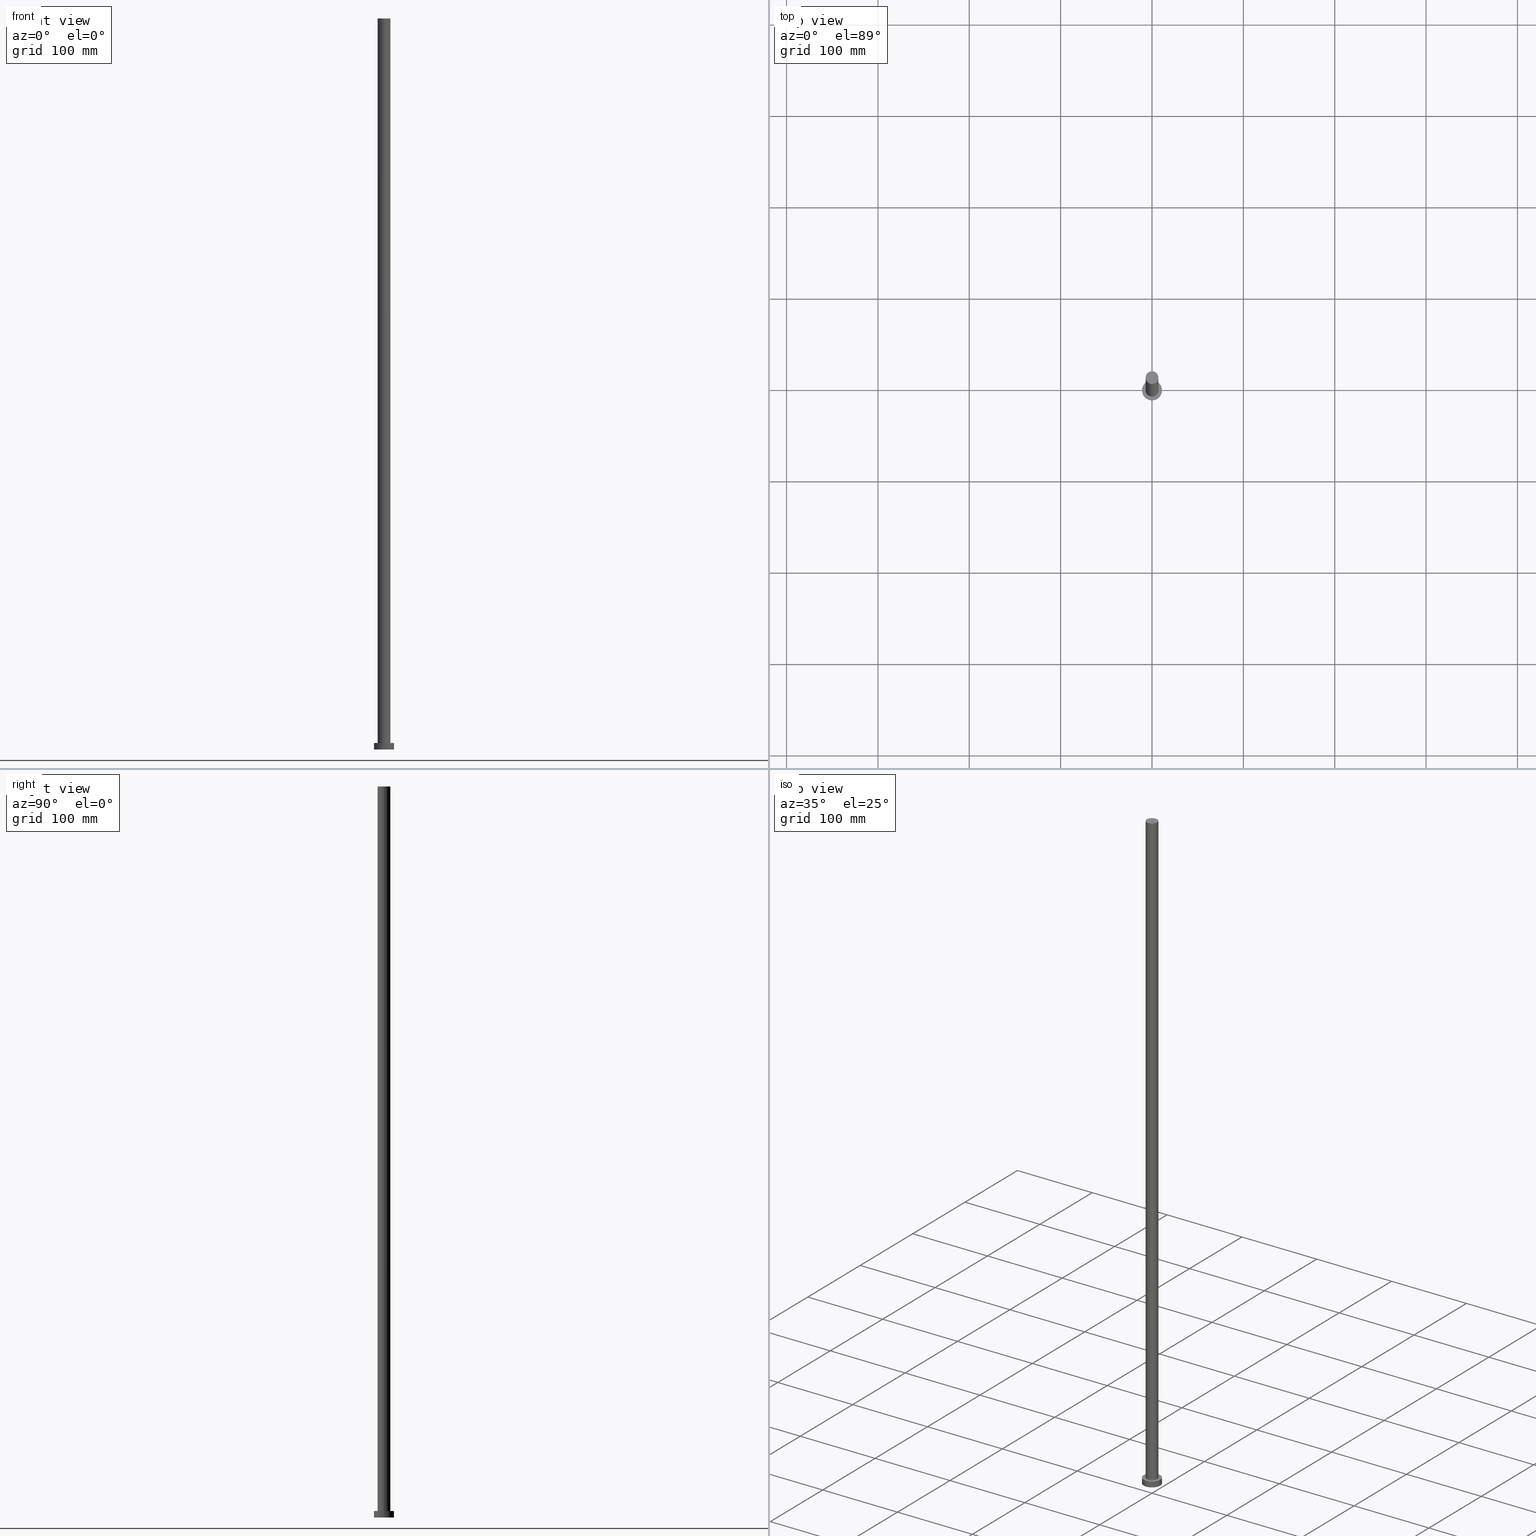
[diagram: canonical four-view strip — front | top / right | iso, engineering-drawing reading convention]
A machine part, canonical four-view strip (front | top / right | iso — engineering-drawing reading convention). The complete STEP part file that produces these views, byte-faithful:
ISO-10303-21;
HEADER;
FILE_DESCRIPTION (( 'STEP AP203' ),
    '1' );
FILE_NAME ('96db.STEP',
    '2023-02-13T09:22:02',
    ( '' ),
    ( '' ),
    'SwSTEP 2.0',
    'SolidWorks 2019',
    '' );
FILE_SCHEMA (( 'CONFIG_CONTROL_DESIGN' ));
ENDSEC;

DATA;
#1 = ORIENTED_EDGE ( 'NONE', *, *, #146, .T. ) ;
#2 = DATE_AND_TIME ( #14, #159 ) ;
#3 = EDGE_CURVE ( 'NONE', #200, #70, #125, .T. ) ;
#4 = AXIS2_PLACEMENT_3D ( 'NONE', #13, #38, #109 ) ;
#5 = APPLICATION_CONTEXT ( 'configuration controlled 3d designs of mechanical parts and assemblies' ) ;
#6 = PERSON_AND_ORGANIZATION_ROLE ( 'classification_officer' ) ;
#7 = DIRECTION ( 'NONE',  ( -1.000000000000000000, 0.000000000000000000, 0.000000000000000000 ) ) ;
#8 = ORIENTED_EDGE ( 'NONE', *, *, #187, .T. ) ;
#9 = APPROVAL_ROLE ( '' ) ;
#10 = DIRECTION ( 'NONE',  ( 0.000000000000000000, 0.000000000000000000, 1.000000000000000000 ) ) ;
#11 = AXIS2_PLACEMENT_3D ( 'NONE', #145, #50, #166 ) ;
#12 = LOCAL_TIME ( 10, 22, 2.000000000000000000, #57 ) ;
#13 = CARTESIAN_POINT ( 'NONE',  ( 0.000000000000000000, 0.000000000000000000, 0.000000000000000000 ) ) ;
#14 = CALENDAR_DATE ( 2023, 13, 2 ) ;
#15 = LOCAL_TIME ( 10, 22, 2.000000000000000000, #241 ) ;
#16 = PERSON_AND_ORGANIZATION ( #87, #202 ) ;
#17 = ORIENTED_EDGE ( 'NONE', *, *, #138, .T. ) ;
#18 = CARTESIAN_POINT ( 'NONE',  ( 0.000000000000000000, 0.000000000000000000, 7.000000000000000000 ) ) ;
#19 = CC_DESIGN_DATE_AND_TIME_ASSIGNMENT ( #36, #192, ( #216 ) ) ;
#20 = CARTESIAN_POINT ( 'NONE',  ( 0.000000000000000000, 0.000000000000000000, 7.000000000000000000 ) ) ;
#21 = FACE_OUTER_BOUND ( 'NONE', #37, .T. ) ;
#22 = CC_DESIGN_PERSON_AND_ORGANIZATION_ASSIGNMENT ( #172, #169, ( #212 ) ) ;
#23 = ORIENTED_EDGE ( 'NONE', *, *, #152, .T. ) ;
#24 = FACE_OUTER_BOUND ( 'NONE', #65, .T. ) ;
#25 = ORIENTED_EDGE ( 'NONE', *, *, #97, .T. ) ;
#26 = DIRECTION ( 'NONE',  ( 1.000000000000000000, 0.000000000000000000, 0.000000000000000000 ) ) ;
#27 = AXIS2_PLACEMENT_3D ( 'NONE', #29, #231, #163 ) ;
#28 = APPROVAL ( #168, 'NEUR�EN�' ) ;
#29 = CARTESIAN_POINT ( 'NONE',  ( 0.000000000000000000, 0.000000000000000000, 7.000000000000000000 ) ) ;
#30 = CARTESIAN_POINT ( 'NONE',  ( 11.00000000000000000, 1.347111479062088405E-15, 7.000000000000000000 ) ) ;
#31 = CARTESIAN_POINT ( 'NONE',  ( -11.00000000000000000, 0.000000000000000000, 7.000000000000000000 ) ) ;
#32 = DIRECTION ( 'NONE',  ( 0.000000000000000000, 0.000000000000000000, 1.000000000000000000 ) ) ;
#33 = FACE_OUTER_BOUND ( 'NONE', #44, .T. ) ;
#34 = ORIENTED_EDGE ( 'NONE', *, *, #108, .T. ) ;
#35 = CARTESIAN_POINT ( 'NONE',  ( 11.00000000000000000, 1.347111479062088405E-15, 7.000000000000000000 ) ) ;
#36 = DATE_AND_TIME ( #135, #15 ) ;
#37 = EDGE_LOOP ( 'NONE', ( #207, #164, #23, #1 ) ) ;
#38 = DIRECTION ( 'NONE',  ( 0.000000000000000000, 0.000000000000000000, 1.000000000000000000 ) ) ;
#39 = VECTOR ( 'NONE', #119, 1000.000000000000000 ) ;
#40 = VERTEX_POINT ( 'NONE', #127 ) ;
#41 = ORIENTED_EDGE ( 'NONE', *, *, #187, .F. ) ;
#42 = PERSON_AND_ORGANIZATION ( #87, #202 ) ;
#43 = AXIS2_PLACEMENT_3D ( 'NONE', #188, #82, #84 ) ;
#44 = EDGE_LOOP ( 'NONE', ( #75, #195, #25, #95 ) ) ;
#45 = ADVANCED_BREP_SHAPE_REPRESENTATION ( '96db', ( #155, #4 ), #219 ) ;
#46 = DESIGN_CONTEXT ( 'detailed design', #225, 'design' ) ;
#47 = PLANE ( 'NONE',  #158 ) ;
#48 = DIRECTION ( 'NONE',  ( -1.000000000000000000, 0.000000000000000000, 0.000000000000000000 ) ) ;
#49 = CIRCLE ( 'NONE', #105, 7.000000000000000888 ) ;
#50 = DIRECTION ( 'NONE',  ( -0.000000000000000000, -0.000000000000000000, -1.000000000000000000 ) ) ;
#51 = CALENDAR_DATE ( 2023, 13, 2 ) ;
#52 = PERSON_AND_ORGANIZATION ( #87, #202 ) ;
#53 = PERSON_AND_ORGANIZATION ( #87, #202 ) ;
#54 = ORIENTED_EDGE ( 'NONE', *, *, #146, .F. ) ;
#55 = CC_DESIGN_APPROVAL ( #28, ( #153 ) ) ;
#56 = MECHANICAL_CONTEXT ( 'NONE', #5, 'mechanical' ) ;
#57 = COORDINATED_UNIVERSAL_TIME_OFFSET ( 1, 0, .AHEAD. ) ;
#58 = CLOSED_SHELL ( 'NONE', ( #129, #175, #154, #180, #245, #104, #147 ) ) ;
#59 = CC_DESIGN_APPROVAL ( #64, ( #212 ) ) ;
#60 = EDGE_CURVE ( 'NONE', #40, #70, #201, .T. ) ;
#61 = AXIS2_PLACEMENT_3D ( 'NONE', #18, #220, #112 ) ;
#62 = DATE_AND_TIME ( #78, #243 ) ;
#63 = DIRECTION ( 'NONE',  ( 1.000000000000000000, 0.000000000000000000, 0.000000000000000000 ) ) ;
#64 = APPROVAL ( #130, 'NEUR�EN�' ) ;
#65 = EDGE_LOOP ( 'NONE', ( #182, #232, #204, #149 ) ) ;
#66 = DIRECTION ( 'NONE',  ( -0.000000000000000000, -0.000000000000000000, -1.000000000000000000 ) ) ;
#67 = FACE_OUTER_BOUND ( 'NONE', #161, .T. ) ;
#68 = SHAPE_DEFINITION_REPRESENTATION ( #250, #45 ) ;
#69 = CARTESIAN_POINT ( 'NONE',  ( -7.000000000000000888, 0.000000000000000000, 800.0000000000000000 ) ) ;
#70 = VERTEX_POINT ( 'NONE', #72 ) ;
#71 = VECTOR ( 'NONE', #157, 1000.000000000000000 ) ;
#72 = CARTESIAN_POINT ( 'NONE',  ( 11.00000000000000000, 1.347111479062088405E-15, 0.000000000000000000 ) ) ;
#73 = CC_DESIGN_PERSON_AND_ORGANIZATION_ASSIGNMENT ( #42, #6, ( #153 ) ) ;
#74 = PERSON_AND_ORGANIZATION_ROLE ( 'design_supplier' ) ;
#75 = ORIENTED_EDGE ( 'NONE', *, *, #99, .F. ) ;
#76 = CC_DESIGN_PERSON_AND_ORGANIZATION_ASSIGNMENT ( #52, #131, ( #216 ) ) ;
#77 = CARTESIAN_POINT ( 'NONE',  ( 0.000000000000000000, 0.000000000000000000, 800.0000000000000000 ) ) ;
#78 = CALENDAR_DATE ( 2023, 13, 2 ) ;
#79 = LINE ( 'NONE', #160, #71 ) ;
#80 = LINE ( 'NONE', #226, #39 ) ;
#81 = APPROVAL_PERSON_ORGANIZATION ( #88, #64, #217 ) ;
#82 = DIRECTION ( 'NONE',  ( 0.000000000000000000, 0.000000000000000000, 1.000000000000000000 ) ) ;
#83 = CARTESIAN_POINT ( 'NONE',  ( 0.000000000000000000, 0.000000000000000000, 7.000000000000000000 ) ) ;
#84 = DIRECTION ( 'NONE',  ( 1.000000000000000000, 0.000000000000000000, 0.000000000000000000 ) ) ;
#85 = AXIS2_PLACEMENT_3D ( 'NONE', #211, #32, #223 ) ;
#86 = CARTESIAN_POINT ( 'NONE',  ( 0.000000000000000000, 0.000000000000000000, 0.000000000000000000 ) ) ;
#87 = PERSON ( 'NEUR�EN�', 'NEUR�EN�', 'NEUR�EN�', ('NEUR�EN�'), ('NEUR�EN�'), ('NEUR�EN�') ) ;
#88 = PERSON_AND_ORGANIZATION ( #87, #202 ) ;
#89 = APPROVAL_PERSON_ORGANIZATION ( #208, #28, #9 ) ;
#90 = APPLICATION_PROTOCOL_DEFINITION ( 'international standard', 'config_control_design', 1994, #225 ) ;
#91 = DIRECTION ( 'NONE',  ( -1.000000000000000000, 0.000000000000000000, 0.000000000000000000 ) ) ;
#92 = EDGE_LOOP ( 'NONE', ( #247, #100 ) ) ;
#93 = CC_DESIGN_PERSON_AND_ORGANIZATION_ASSIGNMENT ( #53, #111, ( #189 ) ) ;
#94 = CYLINDRICAL_SURFACE ( 'NONE', #227, 7.000000000000000888 ) ;
#95 = ORIENTED_EDGE ( 'NONE', *, *, #138, .F. ) ;
#96 = CYLINDRICAL_SURFACE ( 'NONE', #191, 7.000000000000000888 ) ;
#97 = EDGE_CURVE ( 'NONE', #70, #40, #242, .T. ) ;
#98 = CARTESIAN_POINT ( 'NONE',  ( 7.000000000000000888, 8.572527594031474176E-16, 7.000000000000000000 ) ) ;
#99 = EDGE_CURVE ( 'NONE', #200, #214, #186, .T. ) ;
#100 = ORIENTED_EDGE ( 'NONE', *, *, #97, .F. ) ;
#101 = APPROVAL_DATE_TIME ( #142, #28 ) ;
#102 = CYLINDRICAL_SURFACE ( 'NONE', #11, 11.00000000000000000 ) ;
#103 =( NAMED_UNIT ( * ) SI_UNIT ( $, .STERADIAN. ) SOLID_ANGLE_UNIT ( ) );
#104 = ADVANCED_FACE ( 'NONE', ( #21 ), #94, .T. ) ;
#105 = AXIS2_PLACEMENT_3D ( 'NONE', #173, #221, #196 ) ;
#106 = CIRCLE ( 'NONE', #43, 7.000000000000000888 ) ;
#107 = DATE_AND_TIME ( #51, #12 ) ;
#108 = EDGE_CURVE ( 'NONE', #198, #118, #49, .T. ) ;
#109 = DIRECTION ( 'NONE',  ( 1.000000000000000000, 0.000000000000000000, 0.000000000000000000 ) ) ;
#110 = AXIS2_PLACEMENT_3D ( 'NONE', #246, #229, #63 ) ;
#111 = PERSON_AND_ORGANIZATION_ROLE ( 'design_owner' ) ;
#112 = DIRECTION ( 'NONE',  ( 1.000000000000000000, 0.000000000000000000, 0.000000000000000000 ) ) ;
#113 = ORIENTED_EDGE ( 'NONE', *, *, #251, .T. ) ;
#114 = EDGE_LOOP ( 'NONE', ( #54, #133 ) ) ;
#115 = CC_DESIGN_SECURITY_CLASSIFICATION ( #153, ( #212 ) ) ;
#116 = COORDINATED_UNIVERSAL_TIME_OFFSET ( 1, 0, .AHEAD. ) ;
#117 = EDGE_CURVE ( 'NONE', #140, #150, #236, .T. ) ;
#118 = VERTEX_POINT ( 'NONE', #199 ) ;
#119 = DIRECTION ( 'NONE',  ( -0.000000000000000000, -0.000000000000000000, -1.000000000000000000 ) ) ;
#120 = EDGE_CURVE ( 'NONE', #198, #140, #80, .T. ) ;
#121 = CARTESIAN_POINT ( 'NONE',  ( 0.000000000000000000, 0.000000000000000000, 800.0000000000000000 ) ) ;
#122 = DIRECTION ( 'NONE',  ( 0.000000000000000000, 0.000000000000000000, 1.000000000000000000 ) ) ;
#123 = AXIS2_PLACEMENT_3D ( 'NONE', #83, #209, #249 ) ;
#124 = FACE_BOUND ( 'NONE', #114, .T. ) ;
#125 = LINE ( 'NONE', #30, #156 ) ;
#126 = DIRECTION ( 'NONE',  ( 1.000000000000000000, 0.000000000000000000, -0.000000000000000000 ) ) ;
#127 = CARTESIAN_POINT ( 'NONE',  ( -11.00000000000000000, 0.000000000000000000, 0.000000000000000000 ) ) ;
#128 = FACE_OUTER_BOUND ( 'NONE', #136, .T. ) ;
#129 = ADVANCED_FACE ( 'NONE', ( #24 ), #96, .T. ) ;
#130 = APPROVAL_STATUS ( 'not_yet_approved' ) ;
#131 = PERSON_AND_ORGANIZATION_ROLE ( 'creator' ) ;
#132 = DIRECTION ( 'NONE',  ( 0.000000000000000000, 0.000000000000000000, 1.000000000000000000 ) ) ;
#133 = ORIENTED_EDGE ( 'NONE', *, *, #117, .F. ) ;
#134 = PERSON_AND_ORGANIZATION ( #87, #202 ) ;
#135 = CALENDAR_DATE ( 2023, 13, 2 ) ;
#136 = EDGE_LOOP ( 'NONE', ( #8, #224 ) ) ;
#137 = AXIS2_PLACEMENT_3D ( 'NONE', #240, #132, #171 ) ;
#138 = EDGE_CURVE ( 'NONE', #214, #40, #79, .T. ) ;
#139 = APPROVAL ( #244, 'NEUR�EN�' ) ;
#140 = VERTEX_POINT ( 'NONE', #98 ) ;
#141 = FACE_OUTER_BOUND ( 'NONE', #144, .T. ) ;
#142 = DATE_AND_TIME ( #205, #252 ) ;
#143 = LINE ( 'NONE', #69, #193 ) ;
#144 = EDGE_LOOP ( 'NONE', ( #113, #34 ) ) ;
#145 = CARTESIAN_POINT ( 'NONE',  ( 0.000000000000000000, 0.000000000000000000, 7.000000000000000000 ) ) ;
#146 = EDGE_CURVE ( 'NONE', #150, #140, #255, .T. ) ;
#147 = ADVANCED_FACE ( 'NONE', ( #141 ), #47, .T. ) ;
#148 = DIRECTION ( 'NONE',  ( -0.000000000000000000, -0.000000000000000000, -1.000000000000000000 ) ) ;
#149 = ORIENTED_EDGE ( 'NONE', *, *, #152, .F. ) ;
#150 = VERTEX_POINT ( 'NONE', #210 ) ;
#151 = SECURITY_CLASSIFICATION_LEVEL ( 'unclassified' ) ;
#152 = EDGE_CURVE ( 'NONE', #118, #150, #143, .T. ) ;
#153 = SECURITY_CLASSIFICATION ( '', '', #151 ) ;
#154 = ADVANCED_FACE ( 'NONE', ( #67 ), #102, .T. ) ;
#155 = MANIFOLD_SOLID_BREP ( 'P�idat vysunut�m3', #58 ) ;
#156 = VECTOR ( 'NONE', #66, 1000.000000000000000 ) ;
#157 = DIRECTION ( 'NONE',  ( -0.000000000000000000, -0.000000000000000000, -1.000000000000000000 ) ) ;
#158 = AXIS2_PLACEMENT_3D ( 'NONE', #121, #122, #126 ) ;
#159 = LOCAL_TIME ( 10, 22, 2.000000000000000000, #215 ) ;
#160 = CARTESIAN_POINT ( 'NONE',  ( -11.00000000000000000, 0.000000000000000000, 7.000000000000000000 ) ) ;
#161 = EDGE_LOOP ( 'NONE', ( #254, #41, #17, #177 ) ) ;
#162 = CC_DESIGN_APPROVAL ( #139, ( #216 ) ) ;
#163 = DIRECTION ( 'NONE',  ( 1.000000000000000000, 0.000000000000000000, 0.000000000000000000 ) ) ;
#164 = ORIENTED_EDGE ( 'NONE', *, *, #251, .F. ) ;
#165 = FACE_OUTER_BOUND ( 'NONE', #92, .T. ) ;
#166 = DIRECTION ( 'NONE',  ( -1.000000000000000000, 0.000000000000000000, 0.000000000000000000 ) ) ;
#167 = CARTESIAN_POINT ( 'NONE',  ( 7.000000000000000888, 8.572527594031474176E-16, 800.0000000000000000 ) ) ;
#168 = APPROVAL_STATUS ( 'not_yet_approved' ) ;
#169 = PERSON_AND_ORGANIZATION_ROLE ( 'creator' ) ;
#170 = APPROVAL_PERSON_ORGANIZATION ( #134, #139, #190 ) ;
#171 = DIRECTION ( 'NONE',  ( 1.000000000000000000, 0.000000000000000000, 0.000000000000000000 ) ) ;
#172 = PERSON_AND_ORGANIZATION ( #87, #202 ) ;
#173 = CARTESIAN_POINT ( 'NONE',  ( 0.000000000000000000, 0.000000000000000000, 800.0000000000000000 ) ) ;
#174 = AXIS2_PLACEMENT_3D ( 'NONE', #86, #10, #185 ) ;
#175 = ADVANCED_FACE ( 'NONE', ( #33 ), #179, .T. ) ;
#176 = DIRECTION ( 'NONE',  ( -0.000000000000000000, -0.000000000000000000, -1.000000000000000000 ) ) ;
#177 = ORIENTED_EDGE ( 'NONE', *, *, #60, .T. ) ;
#178 = DATE_TIME_ROLE ( 'classification_date' ) ;
#179 = CYLINDRICAL_SURFACE ( 'NONE', #237, 11.00000000000000000 ) ;
#180 = ADVANCED_FACE ( 'NONE', ( #124, #128 ), #213, .T. ) ;
#181 = UNCERTAINTY_MEASURE_WITH_UNIT (LENGTH_MEASURE( 1.000000000000000082E-05 ), #253, 'distance_accuracy_value', 'NONE');
#182 = ORIENTED_EDGE ( 'NONE', *, *, #108, .F. ) ;
#183 = PLANE ( 'NONE',  #174 ) ;
#184 = COORDINATED_UNIVERSAL_TIME_OFFSET ( 1, 0, .AHEAD. ) ;
#185 = DIRECTION ( 'NONE',  ( 1.000000000000000000, 0.000000000000000000, -0.000000000000000000 ) ) ;
#186 = CIRCLE ( 'NONE', #61, 11.00000000000000000 ) ;
#187 = EDGE_CURVE ( 'NONE', #214, #200, #228, .T. ) ;
#188 = CARTESIAN_POINT ( 'NONE',  ( 0.000000000000000000, 0.000000000000000000, 800.0000000000000000 ) ) ;
#189 = PRODUCT ( '96db', '96db', '', ( #56 ) ) ;
#190 = APPROVAL_ROLE ( '' ) ;
#191 = AXIS2_PLACEMENT_3D ( 'NONE', #77, #176, #7 ) ;
#192 = DATE_TIME_ROLE ( 'creation_date' ) ;
#193 = VECTOR ( 'NONE', #233, 1000.000000000000000 ) ;
#194 = CARTESIAN_POINT ( 'NONE',  ( 0.000000000000000000, 0.000000000000000000, 800.0000000000000000 ) ) ;
#195 = ORIENTED_EDGE ( 'NONE', *, *, #3, .T. ) ;
#196 = DIRECTION ( 'NONE',  ( 1.000000000000000000, 0.000000000000000000, 0.000000000000000000 ) ) ;
#197 = AXIS2_PLACEMENT_3D ( 'NONE', #20, #203, #26 ) ;
#198 = VERTEX_POINT ( 'NONE', #167 ) ;
#199 = CARTESIAN_POINT ( 'NONE',  ( -7.000000000000000888, 0.000000000000000000, 800.0000000000000000 ) ) ;
#200 = VERTEX_POINT ( 'NONE', #35 ) ;
#201 = CIRCLE ( 'NONE', #85, 11.00000000000000000 ) ;
#202 = ORGANIZATION ( 'NEUR�EN�', 'NEUR�EN�', '' ) ;
#203 = DIRECTION ( 'NONE',  ( 0.000000000000000000, 0.000000000000000000, 1.000000000000000000 ) ) ;
#204 = ORIENTED_EDGE ( 'NONE', *, *, #117, .T. ) ;
#205 = CALENDAR_DATE ( 2023, 13, 2 ) ;
#206 =( NAMED_UNIT ( * ) PLANE_ANGLE_UNIT ( ) SI_UNIT ( $, .RADIAN. ) );
#207 = ORIENTED_EDGE ( 'NONE', *, *, #120, .F. ) ;
#208 = PERSON_AND_ORGANIZATION ( #87, #202 ) ;
#209 = DIRECTION ( 'NONE',  ( 0.000000000000000000, 0.000000000000000000, 1.000000000000000000 ) ) ;
#210 = CARTESIAN_POINT ( 'NONE',  ( -7.000000000000000888, 0.000000000000000000, 7.000000000000000000 ) ) ;
#211 = CARTESIAN_POINT ( 'NONE',  ( 0.000000000000000000, 0.000000000000000000, 0.000000000000000000 ) ) ;
#212 = PRODUCT_DEFINITION_FORMATION_WITH_SPECIFIED_SOURCE ( 'LIBOVOLN�', '', #189, .NOT_KNOWN. ) ;
#213 = PLANE ( 'NONE',  #123 ) ;
#214 = VERTEX_POINT ( 'NONE', #31 ) ;
#215 = COORDINATED_UNIVERSAL_TIME_OFFSET ( 1, 0, .AHEAD. ) ;
#216 = PRODUCT_DEFINITION ( 'NEZN�M�', '', #212, #46 ) ;
#217 = APPROVAL_ROLE ( '' ) ;
#218 = DIRECTION ( 'NONE',  ( -0.000000000000000000, -0.000000000000000000, -1.000000000000000000 ) ) ;
#219 =( GEOMETRIC_REPRESENTATION_CONTEXT ( 3 ) GLOBAL_UNCERTAINTY_ASSIGNED_CONTEXT ( ( #181 ) ) GLOBAL_UNIT_ASSIGNED_CONTEXT ( ( #253, #206, #103 ) ) REPRESENTATION_CONTEXT ( 'NONE', 'WORKASPACE' ) );
#220 = DIRECTION ( 'NONE',  ( 0.000000000000000000, 0.000000000000000000, 1.000000000000000000 ) ) ;
#221 = DIRECTION ( 'NONE',  ( 0.000000000000000000, 0.000000000000000000, 1.000000000000000000 ) ) ;
#222 = APPROVAL_DATE_TIME ( #2, #64 ) ;
#223 = DIRECTION ( 'NONE',  ( 1.000000000000000000, 0.000000000000000000, 0.000000000000000000 ) ) ;
#224 = ORIENTED_EDGE ( 'NONE', *, *, #99, .T. ) ;
#225 = APPLICATION_CONTEXT ( 'configuration controlled 3d designs of mechanical parts and assemblies' ) ;
#226 = CARTESIAN_POINT ( 'NONE',  ( 7.000000000000000888, 8.572527594031474176E-16, 800.0000000000000000 ) ) ;
#227 = AXIS2_PLACEMENT_3D ( 'NONE', #194, #218, #91 ) ;
#228 = CIRCLE ( 'NONE', #27, 11.00000000000000000 ) ;
#229 = DIRECTION ( 'NONE',  ( 0.000000000000000000, 0.000000000000000000, 1.000000000000000000 ) ) ;
#230 = PRODUCT_RELATED_PRODUCT_CATEGORY ( 'detail', '', ( #189 ) ) ;
#231 = DIRECTION ( 'NONE',  ( 0.000000000000000000, 0.000000000000000000, 1.000000000000000000 ) ) ;
#232 = ORIENTED_EDGE ( 'NONE', *, *, #120, .T. ) ;
#233 = DIRECTION ( 'NONE',  ( -0.000000000000000000, -0.000000000000000000, -1.000000000000000000 ) ) ;
#234 = CC_DESIGN_DATE_AND_TIME_ASSIGNMENT ( #62, #178, ( #153 ) ) ;
#235 = APPLICATION_PROTOCOL_DEFINITION ( 'international standard', 'config_control_design', 1994, #5 ) ;
#236 = CIRCLE ( 'NONE', #197, 7.000000000000000888 ) ;
#237 = AXIS2_PLACEMENT_3D ( 'NONE', #248, #148, #48 ) ;
#238 = CC_DESIGN_PERSON_AND_ORGANIZATION_ASSIGNMENT ( #16, #74, ( #212 ) ) ;
#239 = APPROVAL_DATE_TIME ( #107, #139 ) ;
#240 = CARTESIAN_POINT ( 'NONE',  ( 0.000000000000000000, 0.000000000000000000, 0.000000000000000000 ) ) ;
#241 = COORDINATED_UNIVERSAL_TIME_OFFSET ( 1, 0, .AHEAD. ) ;
#242 = CIRCLE ( 'NONE', #137, 11.00000000000000000 ) ;
#243 = LOCAL_TIME ( 10, 22, 2.000000000000000000, #116 ) ;
#244 = APPROVAL_STATUS ( 'not_yet_approved' ) ;
#245 = ADVANCED_FACE ( 'NONE', ( #165 ), #183, .F. ) ;
#246 = CARTESIAN_POINT ( 'NONE',  ( 0.000000000000000000, 0.000000000000000000, 7.000000000000000000 ) ) ;
#247 = ORIENTED_EDGE ( 'NONE', *, *, #60, .F. ) ;
#248 = CARTESIAN_POINT ( 'NONE',  ( 0.000000000000000000, 0.000000000000000000, 7.000000000000000000 ) ) ;
#249 = DIRECTION ( 'NONE',  ( 1.000000000000000000, 0.000000000000000000, -0.000000000000000000 ) ) ;
#250 = PRODUCT_DEFINITION_SHAPE ( 'NONE', 'NONE',  #216 ) ;
#251 = EDGE_CURVE ( 'NONE', #118, #198, #106, .T. ) ;
#252 = LOCAL_TIME ( 10, 22, 2.000000000000000000, #184 ) ;
#253 =( LENGTH_UNIT ( ) NAMED_UNIT ( * ) SI_UNIT ( .MILLI., .METRE. ) );
#254 = ORIENTED_EDGE ( 'NONE', *, *, #3, .F. ) ;
#255 = CIRCLE ( 'NONE', #110, 7.000000000000000888 ) ;
ENDSEC;
END-ISO-10303-21;
